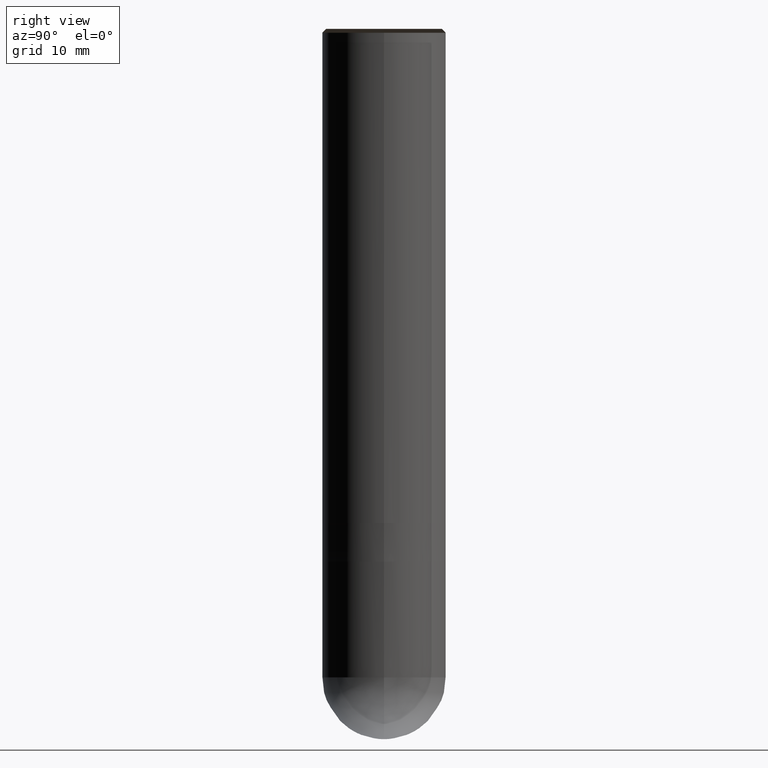
[diagram: clean part render]
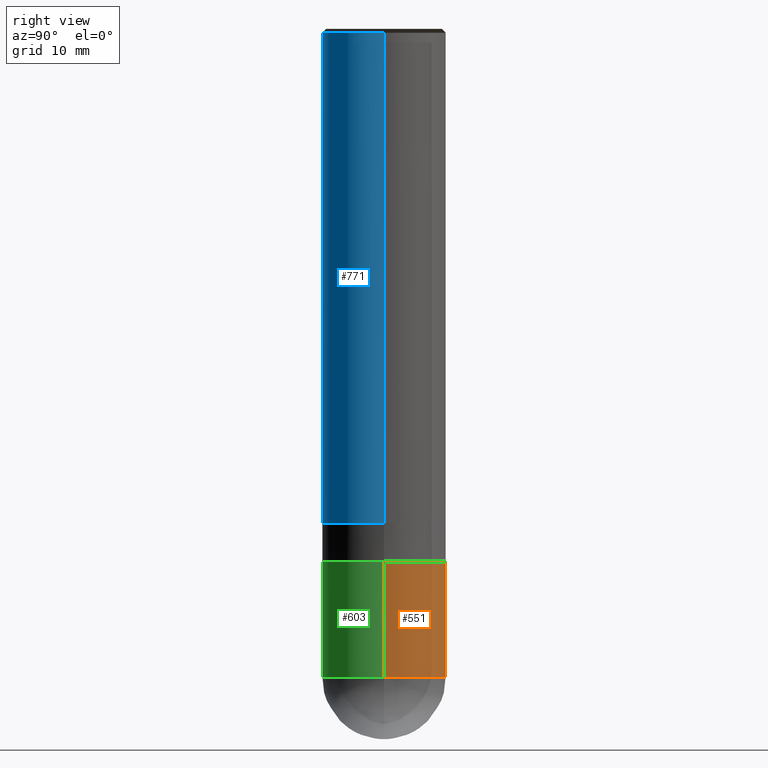
[diagram: same view with three faces highlighted in distinct colors, each labeled with its STEP entity id]
A machine part, right view with three faces highlighted in distinct colors.
Their STEP definitions:

[orange] entity #551 — the highlighted face is a freeform B-spline surface patch.
#466=CARTESIAN_POINT('',(8.0,0.0,-20.0));
#467=CARTESIAN_POINT('',(8.0,8.0,-20.0));
#468=CARTESIAN_POINT('',(0.0,8.0,-20.0));
#469=CARTESIAN_POINT('',(-8.0,8.0,-20.0));
#470=CARTESIAN_POINT('',(-8.0,0.0,-20.0));
#471=CARTESIAN_POINT('',(8.0,0.0,-5.0));
#472=CARTESIAN_POINT('',(8.0,8.0,-5.0));
#473=CARTESIAN_POINT('',(0.0,8.0,-5.0));
#474=CARTESIAN_POINT('',(-8.0,8.0,-5.0));
#475=CARTESIAN_POINT('',(-8.0,0.0,-5.0));
#532=(
BOUNDED_SURFACE()
B_SPLINE_SURFACE(1,2,(
(#466,#467,#468,#469,#470),
(#471,#472,#473,#474,#475)
), .UNSPECIFIED.,.F.,.F.,.F.)
B_SPLINE_SURFACE_WITH_KNOTS((2,2),(3,2,3),(
0.0,1.0),(
0.0,0.5,1.0), .UNSPECIFIED.)
GEOMETRIC_REPRESENTATION_ITEM()
RATIONAL_B_SPLINE_SURFACE(((1.0,0.707106781187,1.0,0.707106781187,1.0),
(1.0,0.707106781187,1.0,0.707106781187,1.0)
))
REPRESENTATION_ITEM('')
SURFACE()
);
#533=(
BOUNDED_CURVE()
B_SPLINE_CURVE(2,(#470,#469,#468,#467,#466),.UNSPECIFIED.,.F.,.F.)
B_SPLINE_CURVE_WITH_KNOTS((3,2,3),
(0.0,0.5,1.0),.UNSPECIFIED.)
CURVE()
GEOMETRIC_REPRESENTATION_ITEM()
RATIONAL_B_SPLINE_CURVE((1.0,0.707106781187,1.0,0.707106781187,1.0))
REPRESENTATION_ITEM('')
);
#534=(
BOUNDED_CURVE()
B_SPLINE_CURVE(1,(#466,#471),.UNSPECIFIED.,.F.,.F.)
B_SPLINE_CURVE_WITH_KNOTS((2,2),
(0.0,1.0),.UNSPECIFIED.)
CURVE()
GEOMETRIC_REPRESENTATION_ITEM()
RATIONAL_B_SPLINE_CURVE((1.0,1.0))
REPRESENTATION_ITEM('')
);
#535=(
BOUNDED_CURVE()
B_SPLINE_CURVE(2,(#471,#472,#473,#474,#475),.UNSPECIFIED.,.F.,.F.)
B_SPLINE_CURVE_WITH_KNOTS((3,2,3),
(0.0,0.5,1.0),.UNSPECIFIED.)
CURVE()
GEOMETRIC_REPRESENTATION_ITEM()
RATIONAL_B_SPLINE_CURVE((1.0,0.707106781187,1.0,0.707106781187,1.0))
REPRESENTATION_ITEM('')
);
#536=(
BOUNDED_CURVE()
B_SPLINE_CURVE(1,(#475,#470),.UNSPECIFIED.,.F.,.F.)
B_SPLINE_CURVE_WITH_KNOTS((2,2),
(0.0,1.0),.UNSPECIFIED.)
CURVE()
GEOMETRIC_REPRESENTATION_ITEM()
RATIONAL_B_SPLINE_CURVE((1.0,1.0))
REPRESENTATION_ITEM('')
);
#537=VERTEX_POINT('',#466);
#538=VERTEX_POINT('',#470);
#539=VERTEX_POINT('',#471);
#540=VERTEX_POINT('',#475);
#541=EDGE_CURVE('',#538,#537,#533,.T.);
#542=EDGE_CURVE('',#537,#539,#534,.T.);
#543=EDGE_CURVE('',#539,#540,#535,.T.);
#544=EDGE_CURVE('',#540,#538,#536,.T.);
#545=ORIENTED_EDGE('',*,*,#541,.T.);
#546=ORIENTED_EDGE('',*,*,#542,.T.);
#547=ORIENTED_EDGE('',*,*,#543,.T.);
#548=ORIENTED_EDGE('',*,*,#544,.T.);
#549=EDGE_LOOP('',(#545,#546,#547,#548));
#550=FACE_OUTER_BOUND('',#549,.T.);
#551=ADVANCED_FACE('',(#550),#532,.T.);

[blue] entity #771 — the highlighted face is a freeform B-spline surface patch.
#486=CARTESIAN_POINT('',(8.0,0.0,0.0));
#490=CARTESIAN_POINT('',(-8.0,0.0,0.0));
#491=CARTESIAN_POINT('',(8.0,0.0,63.5));
#495=CARTESIAN_POINT('',(-8.0,0.0,63.5));
#502=CARTESIAN_POINT('',(-8.0,-8.0,0.0));
#503=CARTESIAN_POINT('',(0.0,-8.0,0.0));
#504=CARTESIAN_POINT('',(8.0,-8.0,0.0));
#505=CARTESIAN_POINT('',(-8.0,-8.0,63.5));
#506=CARTESIAN_POINT('',(0.0,-8.0,63.5));
#507=CARTESIAN_POINT('',(8.0,-8.0,63.5));
#752=(
BOUNDED_SURFACE()
B_SPLINE_SURFACE(1,2,(
(#490,#502,#503,#504,#486),
(#495,#505,#506,#507,#491)
), .UNSPECIFIED.,.F.,.F.,.F.)
B_SPLINE_SURFACE_WITH_KNOTS((2,2),(3,2,3),(
0.0,1.0),(
0.0,0.5,1.0), .UNSPECIFIED.)
GEOMETRIC_REPRESENTATION_ITEM()
RATIONAL_B_SPLINE_SURFACE(((1.0,0.707106781187,1.0,0.707106781187,1.0),
(1.0,0.707106781187,1.0,0.707106781187,1.0)
))
REPRESENTATION_ITEM('')
SURFACE()
);
#753=(
BOUNDED_CURVE()
B_SPLINE_CURVE(2,(#486,#504,#503,#502,#490),.UNSPECIFIED.,.F.,.F.)
B_SPLINE_CURVE_WITH_KNOTS((3,2,3),
(0.0,0.5,1.0),.UNSPECIFIED.)
CURVE()
GEOMETRIC_REPRESENTATION_ITEM()
RATIONAL_B_SPLINE_CURVE((1.0,0.707106781187,1.0,0.707106781187,1.0))
REPRESENTATION_ITEM('')
);
#754=(
BOUNDED_CURVE()
B_SPLINE_CURVE(1,(#490,#495),.UNSPECIFIED.,.F.,.F.)
B_SPLINE_CURVE_WITH_KNOTS((2,2),
(0.0,1.0),.UNSPECIFIED.)
CURVE()
GEOMETRIC_REPRESENTATION_ITEM()
RATIONAL_B_SPLINE_CURVE((1.0,1.0))
REPRESENTATION_ITEM('')
);
#755=(
BOUNDED_CURVE()
B_SPLINE_CURVE(2,(#495,#505,#506,#507,#491),.UNSPECIFIED.,.F.,.F.)
B_SPLINE_CURVE_WITH_KNOTS((3,2,3),
(0.0,0.5,1.0),.UNSPECIFIED.)
CURVE()
GEOMETRIC_REPRESENTATION_ITEM()
RATIONAL_B_SPLINE_CURVE((1.0,0.707106781187,1.0,0.707106781187,1.0))
REPRESENTATION_ITEM('')
);
#756=(
BOUNDED_CURVE()
B_SPLINE_CURVE(1,(#491,#486),.UNSPECIFIED.,.F.,.F.)
B_SPLINE_CURVE_WITH_KNOTS((2,2),
(0.0,1.0),.UNSPECIFIED.)
CURVE()
GEOMETRIC_REPRESENTATION_ITEM()
RATIONAL_B_SPLINE_CURVE((1.0,1.0))
REPRESENTATION_ITEM('')
);
#757=VERTEX_POINT('',#486);
#758=VERTEX_POINT('',#490);
#759=VERTEX_POINT('',#491);
#760=VERTEX_POINT('',#495);
#761=EDGE_CURVE('',#757,#758,#753,.T.);
#762=EDGE_CURVE('',#758,#760,#754,.T.);
#763=EDGE_CURVE('',#760,#759,#755,.T.);
#764=EDGE_CURVE('',#759,#757,#756,.T.);
#765=ORIENTED_EDGE('',*,*,#761,.T.);
#766=ORIENTED_EDGE('',*,*,#762,.T.);
#767=ORIENTED_EDGE('',*,*,#763,.T.);
#768=ORIENTED_EDGE('',*,*,#764,.T.);
#769=EDGE_LOOP('',(#765,#766,#767,#768));
#770=FACE_OUTER_BOUND('',#769,.T.);
#771=ADVANCED_FACE('',(#770),#752,.T.);

[green] entity #603 — the highlighted face is a freeform B-spline surface patch.
#466=CARTESIAN_POINT('',(8.0,0.0,-20.0));
#470=CARTESIAN_POINT('',(-8.0,0.0,-20.0));
#471=CARTESIAN_POINT('',(8.0,0.0,-5.0));
#475=CARTESIAN_POINT('',(-8.0,0.0,-5.0));
#480=CARTESIAN_POINT('',(-8.0,-8.0,-20.0));
#481=CARTESIAN_POINT('',(0.0,-8.0,-20.0));
#482=CARTESIAN_POINT('',(8.0,-8.0,-20.0));
#483=CARTESIAN_POINT('',(-8.0,-8.0,-5.0));
#484=CARTESIAN_POINT('',(0.0,-8.0,-5.0));
#485=CARTESIAN_POINT('',(8.0,-8.0,-5.0));
#584=(
BOUNDED_SURFACE()
B_SPLINE_SURFACE(1,2,(
(#470,#480,#481,#482,#466),
(#475,#483,#484,#485,#471)
), .UNSPECIFIED.,.F.,.F.,.F.)
B_SPLINE_SURFACE_WITH_KNOTS((2,2),(3,2,3),(
0.0,1.0),(
0.0,0.5,1.0), .UNSPECIFIED.)
GEOMETRIC_REPRESENTATION_ITEM()
RATIONAL_B_SPLINE_SURFACE(((1.0,0.707106781187,1.0,0.707106781187,1.0),
(1.0,0.707106781187,1.0,0.707106781187,1.0)
))
REPRESENTATION_ITEM('')
SURFACE()
);
#585=(
BOUNDED_CURVE()
B_SPLINE_CURVE(2,(#466,#482,#481,#480,#470),.UNSPECIFIED.,.F.,.F.)
B_SPLINE_CURVE_WITH_KNOTS((3,2,3),
(0.0,0.5,1.0),.UNSPECIFIED.)
CURVE()
GEOMETRIC_REPRESENTATION_ITEM()
RATIONAL_B_SPLINE_CURVE((1.0,0.707106781187,1.0,0.707106781187,1.0))
REPRESENTATION_ITEM('')
);
#586=(
BOUNDED_CURVE()
B_SPLINE_CURVE(1,(#470,#475),.UNSPECIFIED.,.F.,.F.)
B_SPLINE_CURVE_WITH_KNOTS((2,2),
(0.0,1.0),.UNSPECIFIED.)
CURVE()
GEOMETRIC_REPRESENTATION_ITEM()
RATIONAL_B_SPLINE_CURVE((1.0,1.0))
REPRESENTATION_ITEM('')
);
#587=(
BOUNDED_CURVE()
B_SPLINE_CURVE(2,(#475,#483,#484,#485,#471),.UNSPECIFIED.,.F.,.F.)
B_SPLINE_CURVE_WITH_KNOTS((3,2,3),
(0.0,0.5,1.0),.UNSPECIFIED.)
CURVE()
GEOMETRIC_REPRESENTATION_ITEM()
RATIONAL_B_SPLINE_CURVE((1.0,0.707106781187,1.0,0.707106781187,1.0))
REPRESENTATION_ITEM('')
);
#588=(
BOUNDED_CURVE()
B_SPLINE_CURVE(1,(#471,#466),.UNSPECIFIED.,.F.,.F.)
B_SPLINE_CURVE_WITH_KNOTS((2,2),
(0.0,1.0),.UNSPECIFIED.)
CURVE()
GEOMETRIC_REPRESENTATION_ITEM()
RATIONAL_B_SPLINE_CURVE((1.0,1.0))
REPRESENTATION_ITEM('')
);
#589=VERTEX_POINT('',#466);
#590=VERTEX_POINT('',#470);
#591=VERTEX_POINT('',#471);
#592=VERTEX_POINT('',#475);
#593=EDGE_CURVE('',#589,#590,#585,.T.);
#594=EDGE_CURVE('',#590,#592,#586,.T.);
#595=EDGE_CURVE('',#592,#591,#587,.T.);
#596=EDGE_CURVE('',#591,#589,#588,.T.);
#597=ORIENTED_EDGE('',*,*,#593,.T.);
#598=ORIENTED_EDGE('',*,*,#594,.T.);
#599=ORIENTED_EDGE('',*,*,#595,.T.);
#600=ORIENTED_EDGE('',*,*,#596,.T.);
#601=EDGE_LOOP('',(#597,#598,#599,#600));
#602=FACE_OUTER_BOUND('',#601,.T.);
#603=ADVANCED_FACE('',(#602),#584,.T.);